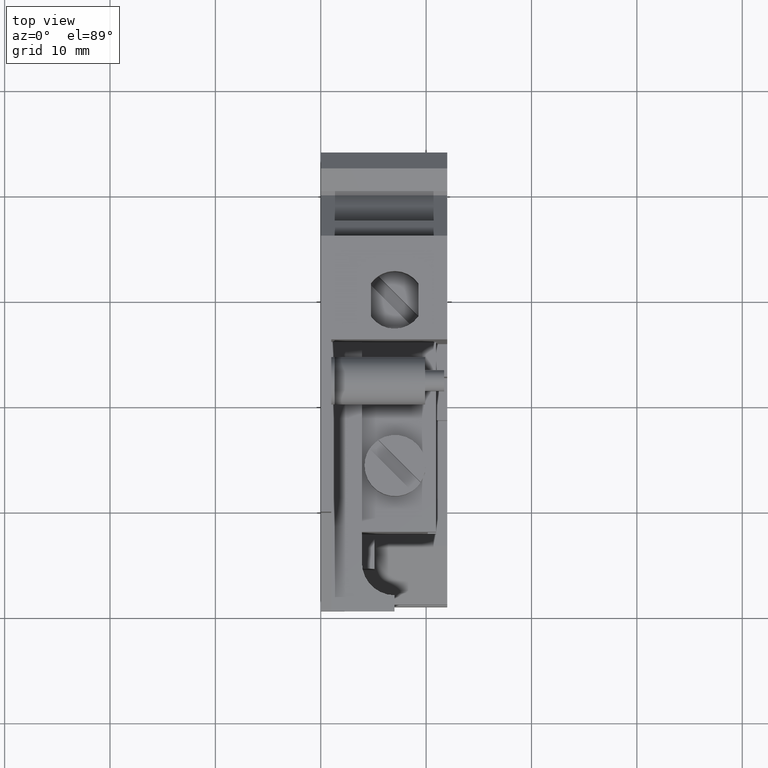
[diagram: clean part render]
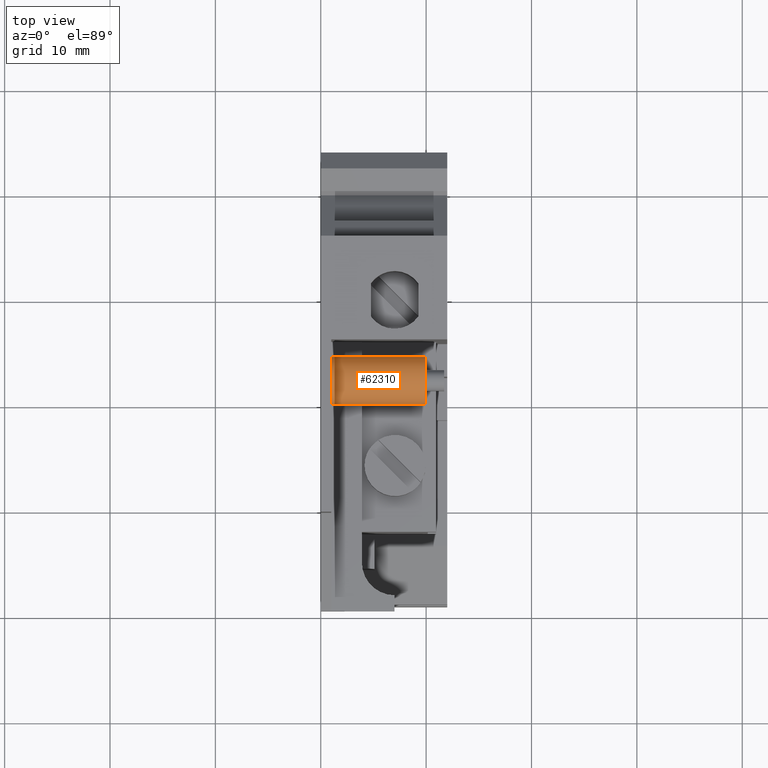
[diagram: same view with one face highlighted and labeled with its STEP entity id]
A machine part, top view. The second image highlights one B-rep face of the part: STEP entity #62310.
In plain terms, the highlighted cylindrical surface (edge-blend (fillet) strip) has radius 2.25 mm, axis along (1, 0, 0).
Its self-contained STEP definition (entity closure, byte-faithful):
#57800=CARTESIAN_POINT('',(-152.255125039702,156.178997429054,-11.));
#57810=DIRECTION('',(0.,0.,1.));
#57820=DIRECTION('',(1.,0.,0.));
#57830=AXIS2_PLACEMENT_3D('',#57800,#57810,#57820);
#57840=CIRCLE('',#57830,2.25);
#57850=CARTESIAN_POINT('',(-150.005125039702,156.178997429054,-11.));
#57860=VERTEX_POINT('',#57850);
#57870=CARTESIAN_POINT('',(-154.505125039702,156.178997429054,-11.));
#57880=VERTEX_POINT('',#57870);
#57890=EDGE_CURVE('',#57860,#57880,#57840,.T.);
#61060=CARTESIAN_POINT('',(-152.255125039702,156.178997429054,-2.1));
#61070=DIRECTION('',(0.,0.,1.));
#61080=DIRECTION('',(1.,0.,0.));
#61090=AXIS2_PLACEMENT_3D('',#61060,#61070,#61080);
#61100=CIRCLE('',#61090,2.25);
#61110=CARTESIAN_POINT('',(-150.005125039702,156.178997429054,-2.1));
#61120=VERTEX_POINT('',#61110);
#61130=CARTESIAN_POINT('',(-154.505125039702,156.178997429054,-2.1));
#61140=VERTEX_POINT('',#61130);
#61150=EDGE_CURVE('',#61120,#61140,#61100,.T.);
#61340=CARTESIAN_POINT('',(-150.005125039702,156.178997429054,-11.));
#61350=DIRECTION('',(0.,0.,1.));
#61360=VECTOR('',#61350,1.);
#61370=LINE('',#61340,#61360);
#61380=EDGE_CURVE('',#57860,#61120,#61370,.T.);
#61410=CARTESIAN_POINT('',(-154.505125039702,156.178997429054,-11.));
#61420=DIRECTION('',(0.,0.,1.));
#61430=VECTOR('',#61420,1.);
#61440=LINE('',#61410,#61430);
#61450=EDGE_CURVE('',#57880,#61140,#61440,.T.);
#62200=CARTESIAN_POINT('',(-152.255125039702,156.178997429054,-11.));
#62210=DIRECTION('',(0.,0.,1.));
#62220=DIRECTION('',(1.,0.,0.));
#62230=AXIS2_PLACEMENT_3D('',#62200,#62210,#62220);
#62240=CYLINDRICAL_SURFACE('',#62230,2.25);
#62250=ORIENTED_EDGE('',*,*,#61150,.F.);
#62260=ORIENTED_EDGE('',*,*,#61450,.T.);
#62270=ORIENTED_EDGE('',*,*,#57890,.T.);
#62280=ORIENTED_EDGE('',*,*,#61380,.F.);
#62290=EDGE_LOOP('',(#62280,#62270,#62260,#62250));
#62300=FACE_OUTER_BOUND('',#62290,.T.);
#62310=ADVANCED_FACE('',(#62300),#62240,.T.);